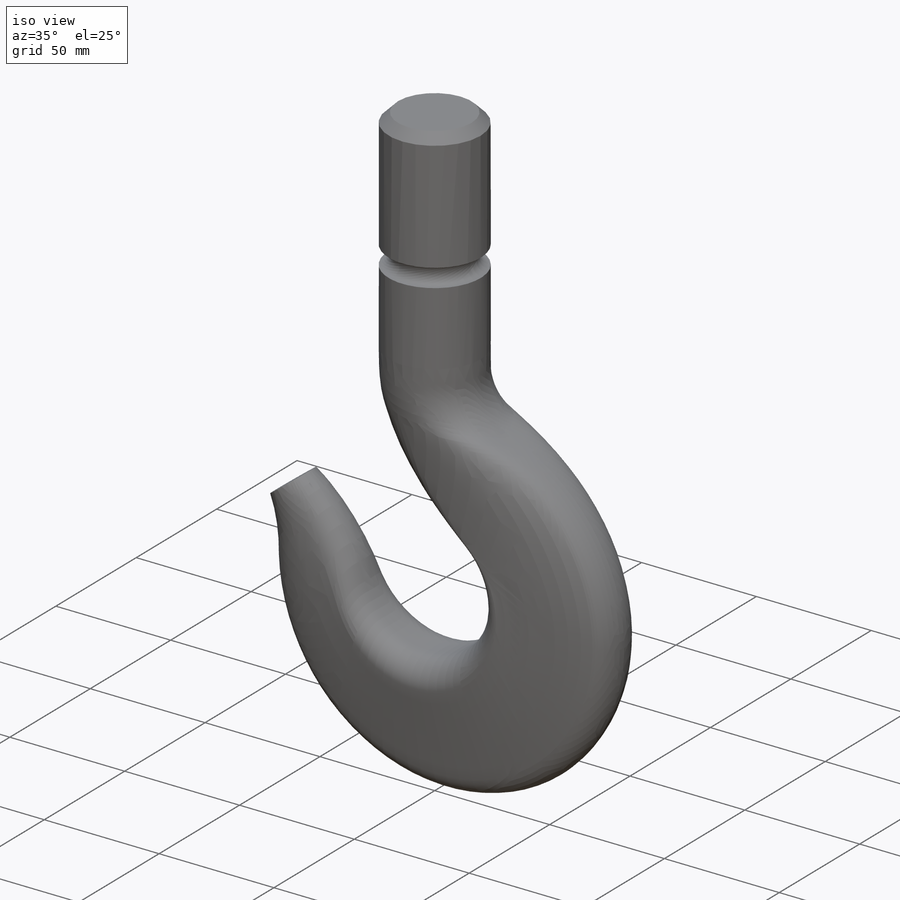
[diagram: iso view]
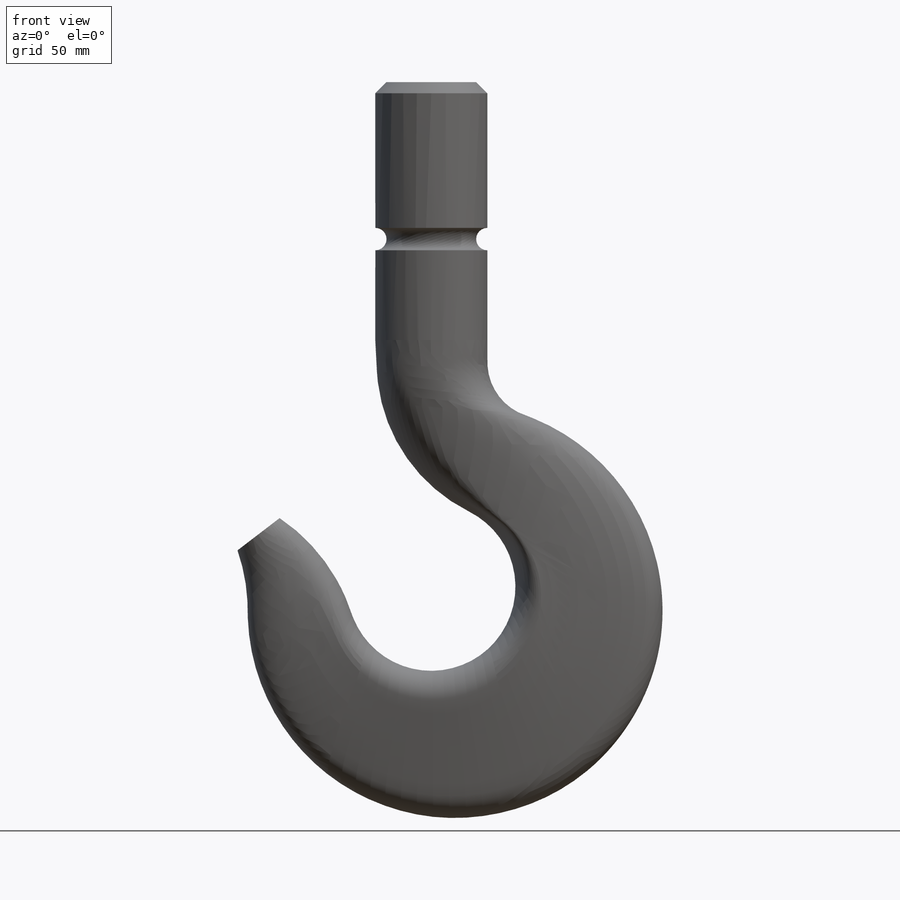
[diagram: front view]
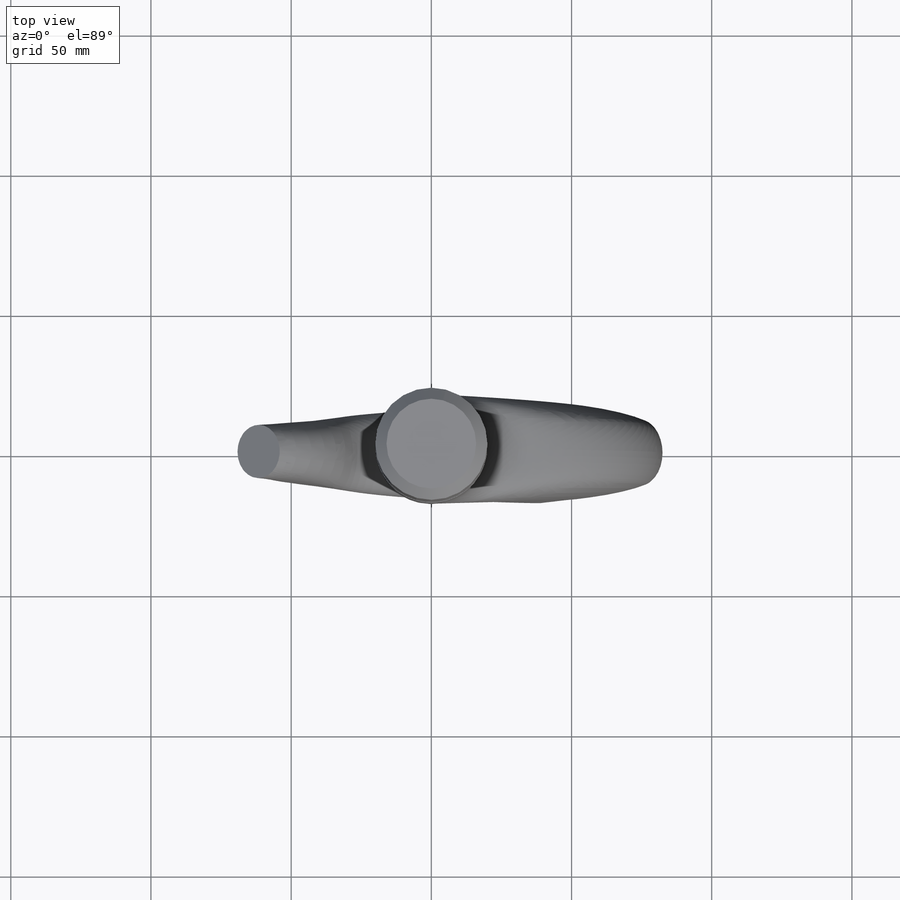
[diagram: top view]
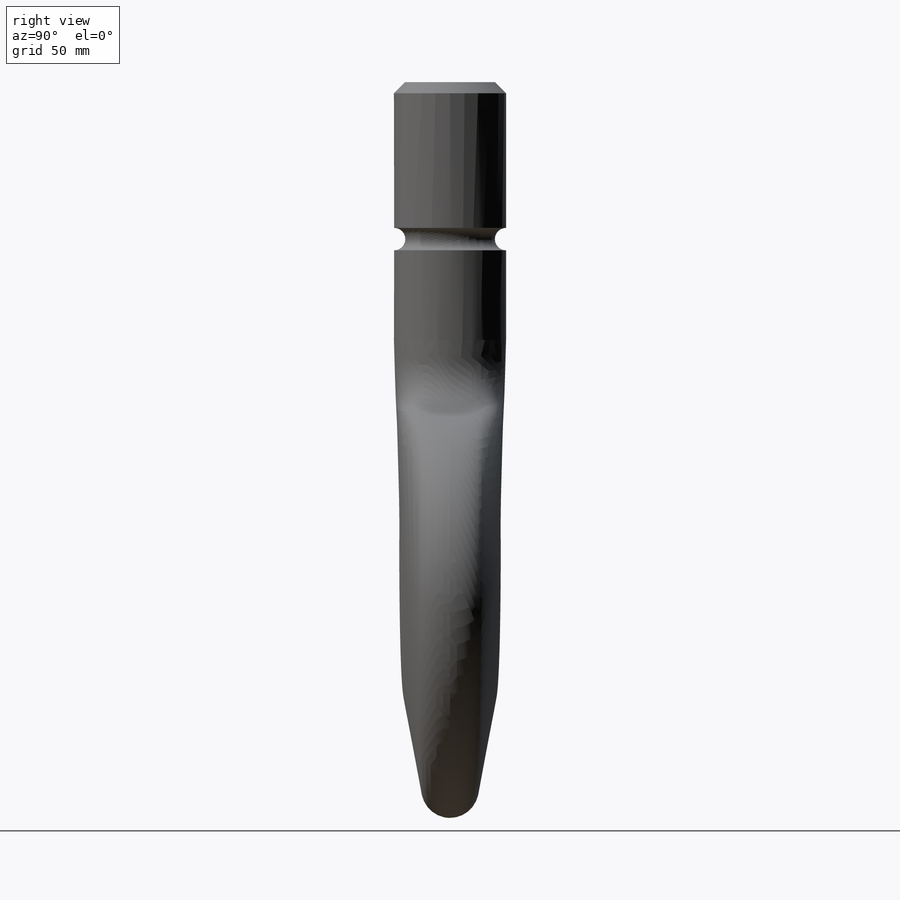
[diagram: right view]
SOLIDWORKS PART (.sldprt)
format: sldprt  version: not decoded by parser v0  size: 314,368 bytes
history: native  units: mm
features: sketch x8, plane x3, material x1, revolve x1 (+14 scaffold rows collapsed)
feature tree (27):
  scaffold x14  (default folders/planes/origin — collapsed)
  material  "Material <not specified>"
  sketch  "Sketch1"  dims[c1.D1=60.0mm c1.D3=148.0mm c1.D4=60.0mm c1.D7=20.0mm c1.D10=10.0mm c1.D2=~14.912012mm c2.D2=45.0deg c2.D4=26.0mm c2.D5=~60.06462mm c3.D4=82.0mm c3.D5=88.0mm c3.D6=20.0mm c3.D8=112.0mm c3.D9=45.0mm]
  sketch  "Sketch2"
  sketch  "Sketch4"
  sketch  "Sketch5"  dims[c1.D1=20.0mm c1.D4=10.0mm c2.D1=12.0mm c2.D2=6.0mm c2.D3=12.0mm c3.D2=12.0mm c3.D3=6.0mm]
  plane  "Plane1"
  sketch  "Sketch6"
  plane  "Plane2"
  sketch  "Sketch7"  dims[D1=38.0mm]
  plane  "Plane3"
  sketch  "Sketch8"
  sketch  "Sketch10"  dims[c1.D5=8.0mm c1.D6=8.0mm c1.D1=92.0mm c1.D2=16.0mm c1.D3=~9.501285mm c2.D3=45.0deg c2.D4=5.0mm c2.D5=~51.180821mm c2.D6=60.0mm c3.D4=4.0mm c3.D7=32.0mm]
  revolve  "Revolve12"  Angle=360deg
decode coverage: 5 of 9 modeling features carry decoded parameters
note: ~ marks probable driven/reference dimensions
note: suppression state not decoded; provenance and decode notes live in map.json
